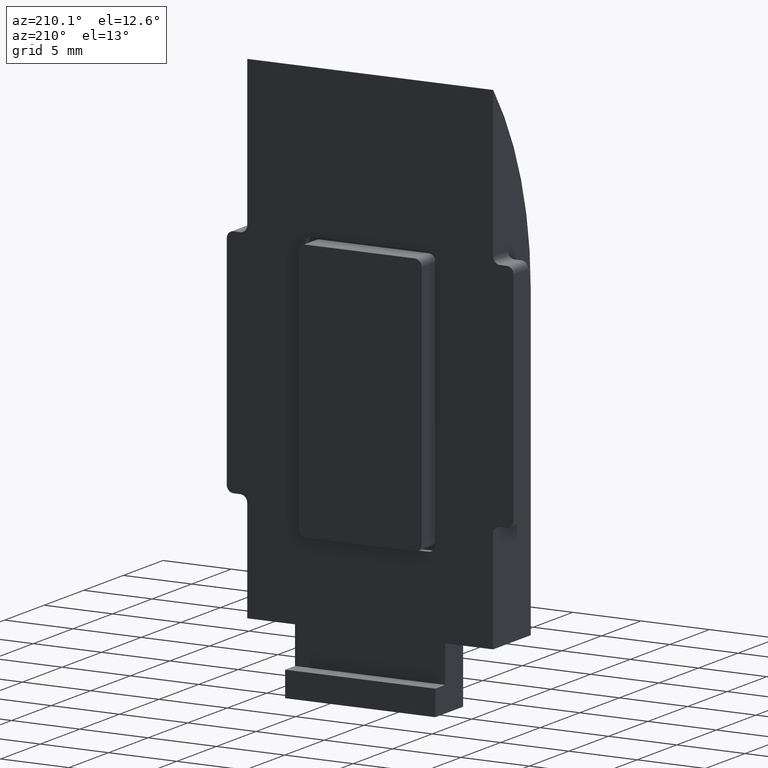
[diagram: clean part render]
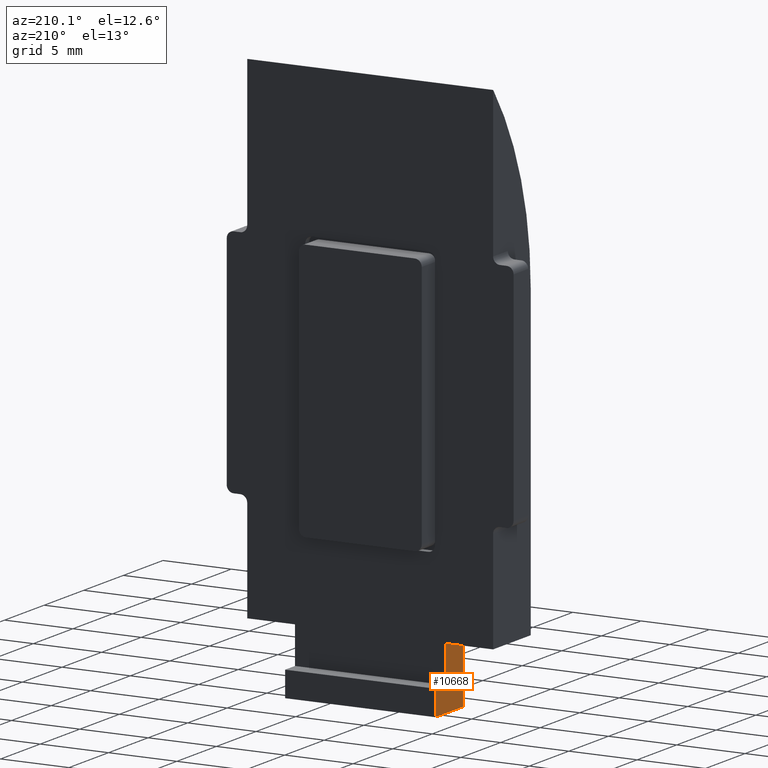
[diagram: same view with one face highlighted and labeled with its STEP entity id]
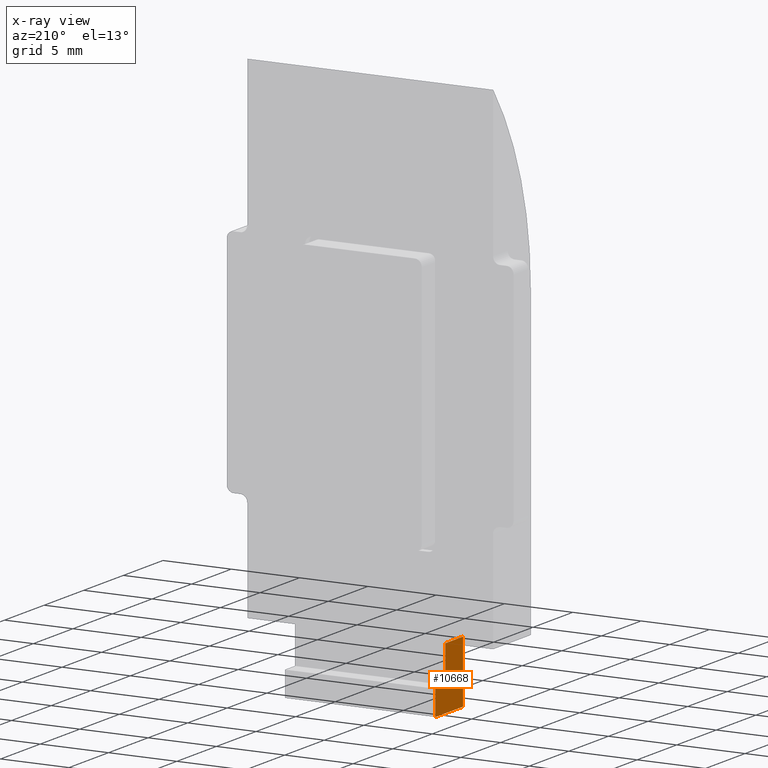
[diagram: x-ray of the same camera — body ghosted, the highlighted face saturated]
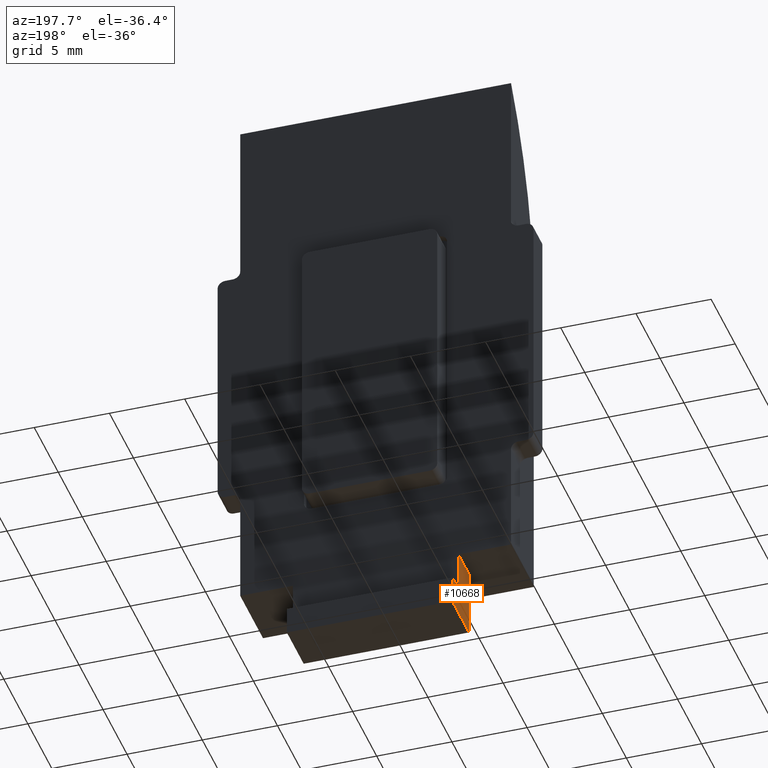
[diagram: same view with one face highlighted and labeled with its STEP entity id]
A machine part, auxiliary view. The second image highlights one B-rep face of the part: STEP entity #10668.
The next image is the same camera in x-ray: the body ghosted, the highlighted face saturated — about 0% of this face is hidden behind the body in this view.
A second angle (auxiliary view) of the same face is appended — the face is thin or edge-on in the first view.
In plain terms, the highlighted planar face has unit normal (1, 0, 0).
Its self-contained STEP definition (entity closure, byte-faithful):
#125 = DIRECTION ( 'NONE',  ( -0.000000000000000000, 5.337610695313244482E-16, -1.000000000000000000 ) ) ;
#147 = LINE ( 'NONE', #7138, #14439 ) ;
#361 = DIRECTION ( 'NONE',  ( -0.000000000000000000, 5.337610695313244482E-16, -1.000000000000000000 ) ) ;
#710 = CARTESIAN_POINT ( 'NONE',  ( -5.500000000000000000, 4.750000000000001776, -2.700000000000021938 ) ) ;
#1331 = VERTEX_POINT ( 'NONE', #6390 ) ;
#1428 = EDGE_CURVE ( 'NONE', #3044, #13222, #8629, .T. ) ;
#1441 = FACE_OUTER_BOUND ( 'NONE', #8829, .T. ) ;
#1504 = CARTESIAN_POINT ( 'NONE',  ( -5.500000000000000000, 5.999999999999985789, 4.949747468305811360 ) ) ;
#1709 = DIRECTION ( 'NONE',  ( 1.000000000000000000, 0.000000000000000000, 0.000000000000000000 ) ) ;
#1993 = DIRECTION ( 'NONE',  ( 0.000000000000000000, -1.000000000000000000, 0.000000000000000000 ) ) ;
#2330 = LINE ( 'NONE', #1504, #15576 ) ;
#2610 = CARTESIAN_POINT ( 'NONE',  ( -5.500000000000000000, 2.499999999999990230, -4.550000000000019362 ) ) ;
#2791 = VERTEX_POINT ( 'NONE', #6785 ) ;
#2832 = CARTESIAN_POINT ( 'NONE',  ( -5.500000000000000000, 4.750000000000001776, 0.000000000000000000 ) ) ;
#2883 = EDGE_CURVE ( 'NONE', #2791, #16612, #3604, .T. ) ;
#3044 = VERTEX_POINT ( 'NONE', #710 ) ;
#3604 = LINE ( 'NONE', #4407, #4422 ) ;
#3854 = CARTESIAN_POINT ( 'NONE',  ( -5.500000000000000000, 5.999999999999988454, -2.700000000000021938 ) ) ;
#3980 = DIRECTION ( 'NONE',  ( 0.000000000000000000, -1.112002228190260459E-16, 1.000000000000000000 ) ) ;
#4267 = DIRECTION ( 'NONE',  ( 0.000000000000000000, 0.000000000000000000, -1.000000000000000000 ) ) ;
#4349 = ORIENTED_EDGE ( 'NONE', *, *, #1428, .F. ) ;
#4407 = CARTESIAN_POINT ( 'NONE',  ( -5.500000000000000000, 2.499999999999984901, 4.949747468305811360 ) ) ;
#4422 = VECTOR ( 'NONE', #361, 1000.000000000000000 ) ;
#4554 = EDGE_CURVE ( 'NONE', #1331, #16612, #12430, .T. ) ;
#5727 = PLANE ( 'NONE',  #11086 ) ;
#6110 = EDGE_CURVE ( 'NONE', #8042, #3044, #147, .T. ) ;
#6201 = ORIENTED_EDGE ( 'NONE', *, *, #6110, .F. ) ;
#6390 = CARTESIAN_POINT ( 'NONE',  ( -5.500000000000000000, 5.999999999999988454, -4.550000000000019362 ) ) ;
#6414 = CARTESIAN_POINT ( 'NONE',  ( -5.500000000000000000, -1.734723475976807094E-15, -2.081668171172168513E-14 ) ) ;
#6638 = EDGE_CURVE ( 'NONE', #2791, #13222, #9475, .T. ) ;
#6785 = CARTESIAN_POINT ( 'NONE',  ( -5.500000000000000000, 2.499999999999987566, -2.081668171172168513E-14 ) ) ;
#7138 = CARTESIAN_POINT ( 'NONE',  ( -5.500000000000000000, 0.000000000000000000, -2.700000000000021938 ) ) ;
#7462 = ORIENTED_EDGE ( 'NONE', *, *, #6638, .T. ) ;
#8042 = VERTEX_POINT ( 'NONE', #3854 ) ;
#8415 = VECTOR ( 'NONE', #3980, 1000.000000000000000 ) ;
#8475 = CARTESIAN_POINT ( 'NONE',  ( -5.500000000000000000, 2.602085213965210642E-15, -4.550000000000022915 ) ) ;
#8629 = LINE ( 'NONE', #2832, #8415 ) ;
#8829 = EDGE_LOOP ( 'NONE', ( #10599, #10306, #16550, #7462, #4349, #6201 ) ) ;
#9475 = LINE ( 'NONE', #6414, #13202 ) ;
#9612 = CARTESIAN_POINT ( 'NONE',  ( -5.500000000000000000, -2.602085213965210642E-15, 4.949747468305807807 ) ) ;
#9959 = VECTOR ( 'NONE', #11351, 1000.000000000000000 ) ;
#10306 = ORIENTED_EDGE ( 'NONE', *, *, #4554, .T. ) ;
#10599 = ORIENTED_EDGE ( 'NONE', *, *, #15148, .T. ) ;
#10668 = ADVANCED_FACE ( 'NONE', ( #1441 ), #5727, .F. ) ;
#11086 = AXIS2_PLACEMENT_3D ( 'NONE', #9612, #1709, #4267 ) ;
#11351 = DIRECTION ( 'NONE',  ( 0.000000000000000000, -1.000000000000000000, -5.419372223363790007E-16 ) ) ;
#11757 = DIRECTION ( 'NONE',  ( -0.000000000000000000, 1.000000000000000000, 1.734723475976807094E-16 ) ) ;
#12430 = LINE ( 'NONE', #8475, #9959 ) ;
#13202 = VECTOR ( 'NONE', #11757, 1000.000000000000000 ) ;
#13222 = VERTEX_POINT ( 'NONE', #14981 ) ;
#14439 = VECTOR ( 'NONE', #1993, 1000.000000000000000 ) ;
#14981 = CARTESIAN_POINT ( 'NONE',  ( -5.500000000000000000, 4.750000000000001776, -2.081668171172168513E-14 ) ) ;
#15148 = EDGE_CURVE ( 'NONE', #8042, #1331, #2330, .T. ) ;
#15576 = VECTOR ( 'NONE', #125, 1000.000000000000000 ) ;
#16550 = ORIENTED_EDGE ( 'NONE', *, *, #2883, .F. ) ;
#16612 = VERTEX_POINT ( 'NONE', #2610 ) ;